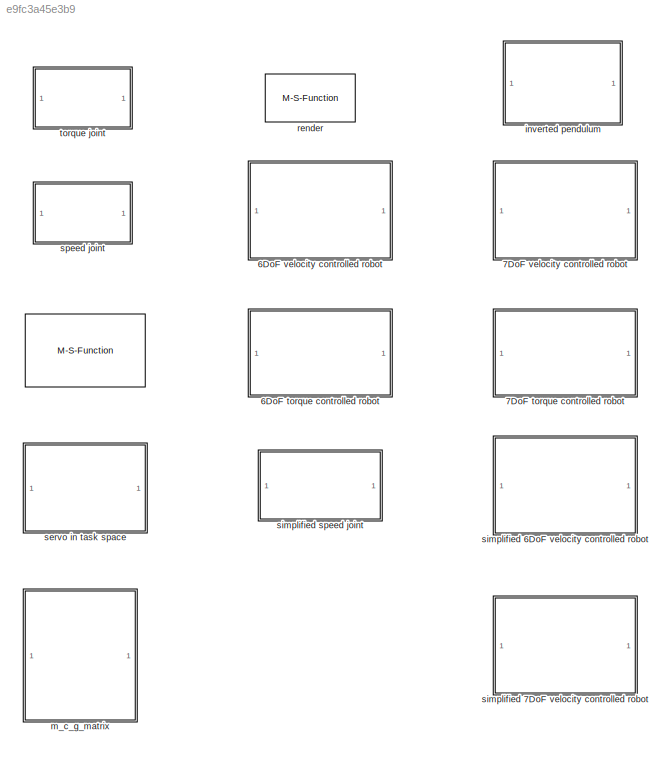
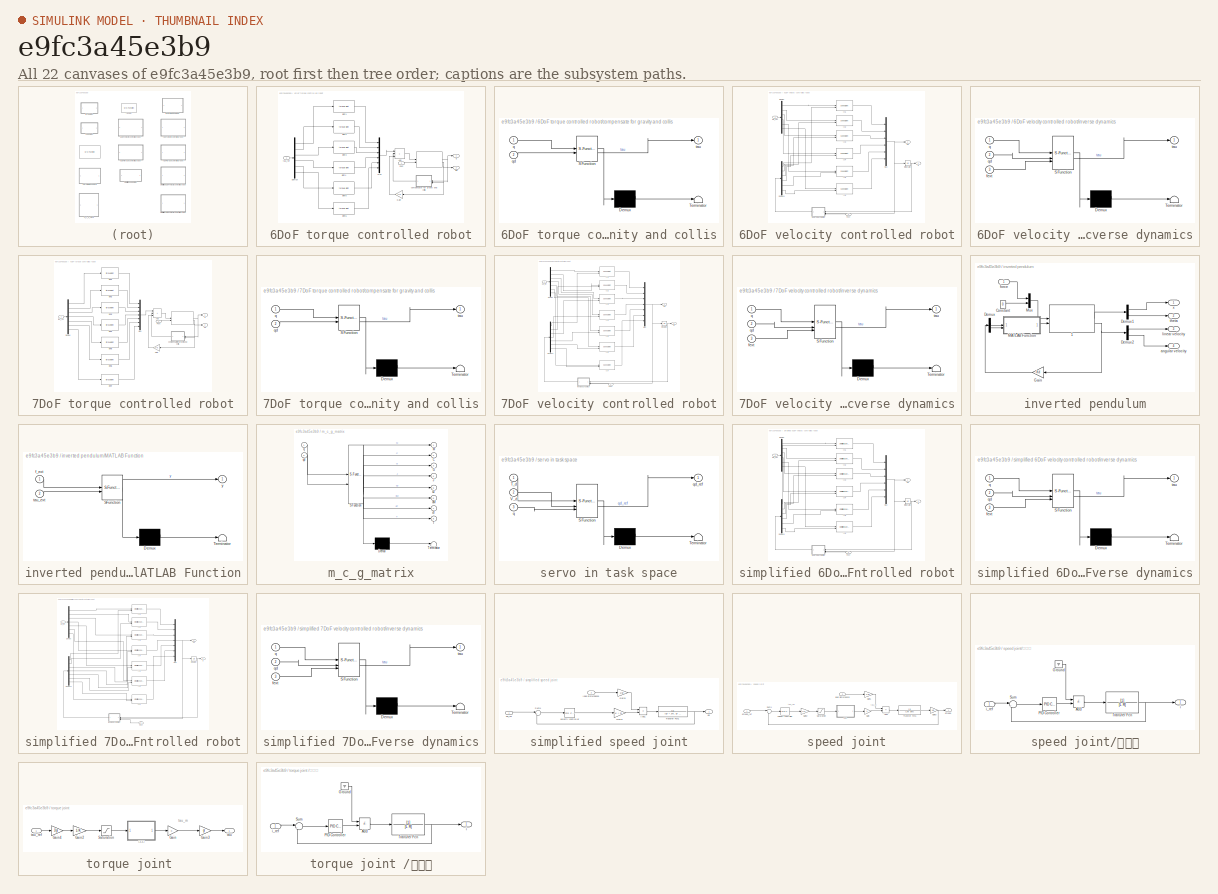
[diagram: thumbnail index - all 22 canvases of the model, root first then tree order]
MODEL slx_e9fc3a45e3b9
KIND library
CONFIG AbsTol = auto
CONFIG EnableMultiTasking = off
CONFIG FixedStep = auto
CONFIG MaxStep = auto
CONFIG MinStep = auto
CONFIG RelTol = 1e-3
CONFIG SampleTimeConstraint = Unconstrained
CONFIG SolverName = VariableStepAuto
CONFIG StartTime = 0.0
CONFIG StopTime = 10.0
BLOCK [M-S-Function]  
  FunctionName = robot_dynamics
  Parameters = robot, init_pos, init_vel
BLOCK [SubSystem] 6DoF torque controlled robot
BLOCK [Reference] 6DoF torque controlled robot/   REF=$bdroot/ 
  SourceBlock = $bdroot/
BLOCK [Sum] 6DoF torque controlled robot/Add
  IconShape = rectangular
  Inputs = +++
BLOCK [Demux] 6DoF torque controlled robot/Demux
  Outputs = 6
BLOCK [Inport] 6DoF torque controlled robot/Fext
  Port = 2
  PortDimensions = [6, robot.dof]
BLOCK [Gain] 6DoF torque controlled robot/Gain
  Gain = -1 * b
BLOCK [Mux] 6DoF torque controlled robot/Mux
  DisplayOption = bar
  Inputs = 6
BLOCK [SubSystem] 6DoF torque controlled robot/compensate for gravity and collis
  ErrorFcn = Stateflow.Translate.translate
  PermitHierarchicalResolution = ExplicitOnly
  SFBlockType = MATLAB Function
  TreatAsAtomicUnit = on
BLOCK [Demux] 6DoF torque controlled robot/compensate for gravity and collis/ Demux 
  Outputs = 1
BLOCK [S-Function] 6DoF torque controlled robot/compensate for gravity and collis/ SFunction 
  EnableBusSupport = off
  FunctionName = sf_sfun
  Parameters = robot
  PortCounts = [2 2]
  SFcnIsStateOwnerBlock = off
  SFunctionDeploymentMode = off
  Tag = Stateflow S-Function 1
BLOCK [Terminator] 6DoF torque controlled robot/compensate for gravity and collis/ Terminator 
BLOCK [Inport] 6DoF torque controlled robot/compensate for gravity and collis/q
BLOCK [Inport] 6DoF torque controlled robot/compensate for gravity and collis/qd
  Port = 2
BLOCK [Outport] 6DoF torque controlled robot/compensate for gravity and collis/tau
BLOCK [Reference] 6DoF torque controlled robot/joint1  REF=$bdroot/torque joint 
  SourceBlock = $bdroot/torque joint
BLOCK [Reference] 6DoF torque controlled robot/joint2  REF=$bdroot/torque joint 
  SourceBlock = $bdroot/torque joint
BLOCK [Reference] 6DoF torque controlled robot/joint3  REF=$bdroot/torque joint 
  SourceBlock = $bdroot/torque joint
BLOCK [Reference] 6DoF torque controlled robot/joint4  REF=$bdroot/torque joint 
  SourceBlock = $bdroot/torque joint
BLOCK [Reference] 6DoF torque controlled robot/joint5  REF=$bdroot/torque joint 
  SourceBlock = $bdroot/torque joint
BLOCK [Reference] 6DoF torque controlled robot/joint6  REF=$bdroot/torque joint 
  SourceBlock = $bdroot/torque joint
BLOCK [Outport] 6DoF torque controlled robot/q
BLOCK [Outport] 6DoF torque controlled robot/qd
  Port = 2
BLOCK [Inport] 6DoF torque controlled robot/tau_ref
BLOCK [SubSystem] 6DoF velocity controlled robot
BLOCK [Demux] 6DoF velocity controlled robot/Demux
  Outputs = 6
BLOCK [Demux] 6DoF velocity controlled robot/Demux1
  Outputs = 6
BLOCK [Inport] 6DoF velocity controlled robot/Fext
  Port = 2
BLOCK [Integrator] 6DoF velocity controlled robot/Integrator
  InitialCondition = q0
BLOCK [Mux] 6DoF velocity controlled robot/Mux
  DisplayOption = bar
  Inputs = 6
BLOCK [SubSystem] 6DoF velocity controlled robot/inverse dynamics
  ErrorFcn = Stateflow.Translate.translate
  PermitHierarchicalResolution = ExplicitOnly
  SFBlockType = MATLAB Function
  TreatAsAtomicUnit = on
BLOCK [Demux] 6DoF velocity controlled robot/inverse dynamics/ Demux 
  Outputs = 1
BLOCK [S-Function] 6DoF velocity controlled robot/inverse dynamics/ SFunction 
  EnableBusSupport = off
  FunctionName = sf_sfun
  Parameters = robot
  PortCounts = [3 2]
  SFcnIsStateOwnerBlock = off
  SFunctionDeploymentMode = off
  Tag = Stateflow S-Function 2
BLOCK [Terminator] 6DoF velocity controlled robot/inverse dynamics/ Terminator 
BLOCK [Inport] 6DoF velocity controlled robot/inverse dynamics/fext
  Port = 3
BLOCK [Inport] 6DoF velocity controlled robot/inverse dynamics/q
BLOCK [Inport] 6DoF velocity controlled robot/inverse dynamics/qd
  Port = 2
BLOCK [Outport] 6DoF velocity controlled robot/inverse dynamics/tau
BLOCK [Outport] 6DoF velocity controlled robot/q
BLOCK [Outport] 6DoF velocity controlled robot/qd
  Port = 2
BLOCK [Inport] 6DoF velocity controlled robot/qd_ref
BLOCK [Reference] 6DoF velocity controlled robot/关节1  REF=$bdroot/speed joint
  SourceBlock = $bdroot/speed joint
BLOCK [Reference] 6DoF velocity controlled robot/关节2  REF=$bdroot/speed joint
  SourceBlock = $bdroot/speed joint
BLOCK [Reference] 6DoF velocity controlled robot/关节3  REF=$bdroot/speed joint
  SourceBlock = $bdroot/speed joint
BLOCK [Reference] 6DoF velocity controlled robot/关节4  REF=$bdroot/speed joint
  SourceBlock = $bdroot/speed joint
BLOCK [Reference] 6DoF velocity controlled robot/关节5  REF=$bdroot/speed joint
  SourceBlock = $bdroot/speed joint
BLOCK [Reference] 6DoF velocity controlled robot/关节6  REF=$bdroot/speed joint
  SourceBlock = $bdroot/speed joint
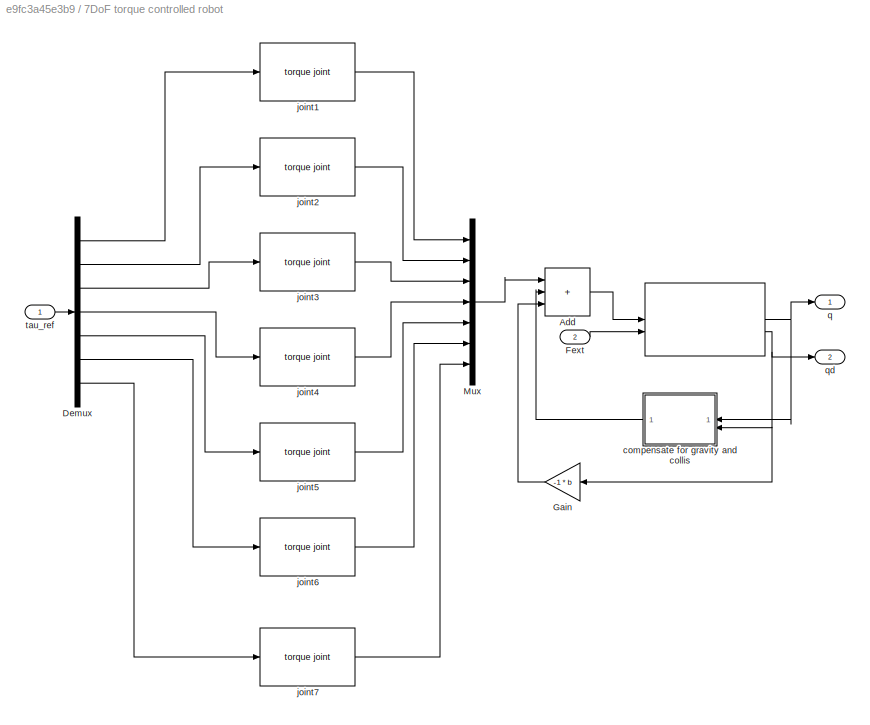
BLOCK [SubSystem] 7DoF torque controlled robot
BLOCK [Reference] 7DoF torque controlled robot/   REF=$bdroot/ 
  SourceBlock = $bdroot/
BLOCK [Sum] 7DoF torque controlled robot/Add
  IconShape = rectangular
  Inputs = +++
BLOCK [Demux] 7DoF torque controlled robot/Demux
  Outputs = 7
BLOCK [Inport] 7DoF torque controlled robot/Fext
  Port = 2
  PortDimensions = [6, robot.dof]
BLOCK [Gain] 7DoF torque controlled robot/Gain
  Gain = -1 * b
BLOCK [Mux] 7DoF torque controlled robot/Mux
  DisplayOption = bar
  Inputs = 7
BLOCK [SubSystem] 7DoF torque controlled robot/compensate for gravity and collis
  ErrorFcn = Stateflow.Translate.translate
  PermitHierarchicalResolution = ExplicitOnly
  SFBlockType = MATLAB Function
  TreatAsAtomicUnit = on
BLOCK [Demux] 7DoF torque controlled robot/compensate for gravity and collis/ Demux 
  Outputs = 1
BLOCK [S-Function] 7DoF torque controlled robot/compensate for gravity and collis/ SFunction 
  EnableBusSupport = off
  FunctionName = sf_sfun
  Parameters = robot
  PortCounts = [2 2]
  SFcnIsStateOwnerBlock = off
  SFunctionDeploymentMode = off
  Tag = Stateflow S-Function 4
BLOCK [Terminator] 7DoF torque controlled robot/compensate for gravity and collis/ Terminator 
BLOCK [Inport] 7DoF torque controlled robot/compensate for gravity and collis/q
BLOCK [Inport] 7DoF torque controlled robot/compensate for gravity and collis/qd
  Port = 2
BLOCK [Outport] 7DoF torque controlled robot/compensate for gravity and collis/tau
BLOCK [Reference] 7DoF torque controlled robot/joint1  REF=$bdroot/torque joint 
  SourceBlock = $bdroot/torque joint
BLOCK [Reference] 7DoF torque controlled robot/joint2  REF=$bdroot/torque joint 
  SourceBlock = $bdroot/torque joint
BLOCK [Reference] 7DoF torque controlled robot/joint3  REF=$bdroot/torque joint 
  SourceBlock = $bdroot/torque joint
BLOCK [Reference] 7DoF torque controlled robot/joint4  REF=$bdroot/torque joint 
  SourceBlock = $bdroot/torque joint
BLOCK [Reference] 7DoF torque controlled robot/joint5  REF=$bdroot/torque joint 
  SourceBlock = $bdroot/torque joint
BLOCK [Reference] 7DoF torque controlled robot/joint6  REF=$bdroot/torque joint 
  SourceBlock = $bdroot/torque joint
BLOCK [Reference] 7DoF torque controlled robot/joint7  REF=$bdroot/torque joint 
  SourceBlock = $bdroot/torque joint
BLOCK [Outport] 7DoF torque controlled robot/q
BLOCK [Outport] 7DoF torque controlled robot/qd
  Port = 2
BLOCK [Inport] 7DoF torque controlled robot/tau_ref
BLOCK [SubSystem] 7DoF velocity controlled robot
BLOCK [Demux] 7DoF velocity controlled robot/Demux
  Outputs = 7
BLOCK [Demux] 7DoF velocity controlled robot/Demux1
  Outputs = 7
BLOCK [Inport] 7DoF velocity controlled robot/Fext
  Port = 2
BLOCK [Integrator] 7DoF velocity controlled robot/Integrator
  InitialCondition = q0
BLOCK [Mux] 7DoF velocity controlled robot/Mux
  DisplayOption = bar
  Inputs = 7
BLOCK [SubSystem] 7DoF velocity controlled robot/inverse dynamics
  ErrorFcn = Stateflow.Translate.translate
  PermitHierarchicalResolution = ExplicitOnly
  SFBlockType = MATLAB Function
  TreatAsAtomicUnit = on
BLOCK [Demux] 7DoF velocity controlled robot/inverse dynamics/ Demux 
  Outputs = 1
BLOCK [S-Function] 7DoF velocity controlled robot/inverse dynamics/ SFunction 
  EnableBusSupport = off
  FunctionName = sf_sfun
  Parameters = robot
  PortCounts = [3 2]
  SFcnIsStateOwnerBlock = off
  SFunctionDeploymentMode = off
  Tag = Stateflow S-Function 3
BLOCK [Terminator] 7DoF velocity controlled robot/inverse dynamics/ Terminator 
BLOCK [Inport] 7DoF velocity controlled robot/inverse dynamics/fext
  Port = 3
BLOCK [Inport] 7DoF velocity controlled robot/inverse dynamics/q
BLOCK [Inport] 7DoF velocity controlled robot/inverse dynamics/qd
  Port = 2
BLOCK [Outport] 7DoF velocity controlled robot/inverse dynamics/tau
BLOCK [Outport] 7DoF velocity controlled robot/q
BLOCK [Outport] 7DoF velocity controlled robot/qd
  Port = 2
BLOCK [Inport] 7DoF velocity controlled robot/qd_ref
BLOCK [Reference] 7DoF velocity controlled robot/关节1  REF=$bdroot/speed joint
  SourceBlock = $bdroot/speed joint
BLOCK [Reference] 7DoF velocity controlled robot/关节2  REF=$bdroot/speed joint
  SourceBlock = $bdroot/speed joint
BLOCK [Reference] 7DoF velocity controlled robot/关节3  REF=$bdroot/speed joint
  SourceBlock = $bdroot/speed joint
BLOCK [Reference] 7DoF velocity controlled robot/关节4  REF=$bdroot/speed joint
  SourceBlock = $bdroot/speed joint
BLOCK [Reference] 7DoF velocity controlled robot/关节5  REF=$bdroot/speed joint
  SourceBlock = $bdroot/speed joint
BLOCK [Reference] 7DoF velocity controlled robot/关节6  REF=$bdroot/speed joint
  SourceBlock = $bdroot/speed joint
BLOCK [Reference] 7DoF velocity controlled robot/关节7  REF=$bdroot/speed joint
  SourceBlock = $bdroot/speed joint
BLOCK [SubSystem] inverted pendulum
BLOCK [Reference] inverted pendulum/ 1  REF=$bdroot/ 
  SourceBlock = $bdroot/
BLOCK [Constant] inverted pendulum/Constant
  Value = 0
BLOCK [Demux] inverted pendulum/Demux
  Outputs = 2
BLOCK [Demux] inverted pendulum/Demux1
  Outputs = 2
BLOCK [Demux] inverted pendulum/Demux2
  Outputs = 2
BLOCK [Gain] inverted pendulum/Gain
  Gain = -Kd
BLOCK [SubSystem] inverted pendulum/MATLAB Function
  ErrorFcn = Stateflow.Translate.translate
  PermitHierarchicalResolution = ExplicitOnly
  SFBlockType = MATLAB Function
  TreatAsAtomicUnit = on
BLOCK [Demux] inverted pendulum/MATLAB Function/ Demux 
  Outputs = 1
BLOCK [S-Function] inverted pendulum/MATLAB Function/ SFunction 
  EnableBusSupport = off
  FunctionName = sf_sfun
  PortCounts = [2 2]
  SFcnIsStateOwnerBlock = off
  SFunctionDeploymentMode = off
  Tag = Stateflow S-Function 5
BLOCK [Terminator] inverted pendulum/MATLAB Function/ Terminator 
BLOCK [Inport] inverted pendulum/MATLAB Function/f_ext
BLOCK [Inport] inverted pendulum/MATLAB Function/tau_ext
  Port = 2
BLOCK [Outport] inverted pendulum/MATLAB Function/y
  VectorParamsAs1DForOutWhenUnconnected = off
BLOCK [Mux] inverted pendulum/Mux
  DisplayOption = bar
  Inputs = 2
BLOCK [Outport] inverted pendulum/angular velocity
  Port = 4
BLOCK [Inport] inverted pendulum/force
BLOCK [Outport] inverted pendulum/linear velocity
  Port = 3
BLOCK [Outport] inverted pendulum/theta
  Port = 2
BLOCK [Outport] inverted pendulum/x
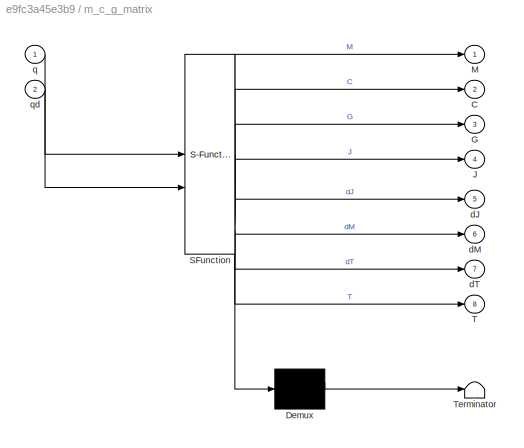
BLOCK [SubSystem] m_c_g_matrix
  ErrorFcn = Stateflow.Translate.translate
  PermitHierarchicalResolution = ExplicitOnly
  SFBlockType = MATLAB Function
  TreatAsAtomicUnit = on
BLOCK [Demux] m_c_g_matrix/ Demux 
  Outputs = 1
BLOCK [S-Function] m_c_g_matrix/ SFunction 
  EnableBusSupport = off
  FunctionName = sf_sfun
  Parameters = robot
  PortCounts = [2 9]
  SFcnIsStateOwnerBlock = off
  SFunctionDeploymentMode = off
  Tag = Stateflow S-Function 9
BLOCK [Terminator] m_c_g_matrix/ Terminator 
BLOCK [Outport] m_c_g_matrix/C
  Port = 2
BLOCK [Outport] m_c_g_matrix/G
  Port = 3
BLOCK [Outport] m_c_g_matrix/J
  Port = 4
BLOCK [Outport] m_c_g_matrix/M
BLOCK [Outport] m_c_g_matrix/T
  Port = 8
BLOCK [Outport] m_c_g_matrix/dJ
  Port = 5
BLOCK [Outport] m_c_g_matrix/dM
  Port = 6
BLOCK [Outport] m_c_g_matrix/dT
  Port = 7
BLOCK [Inport] m_c_g_matrix/q
BLOCK [Inport] m_c_g_matrix/qd
  Port = 2
BLOCK [M-S-Function] render
  FunctionName = render_to_MICSys
  Parameters = Ts
BLOCK [SubSystem] servo in task space
  ErrorFcn = Stateflow.Translate.translate
  PermitHierarchicalResolution = ExplicitOnly
  SFBlockType = MATLAB Function
  TreatAsAtomicUnit = on
BLOCK [Demux] servo in task space/ Demux 
  Outputs = 1
BLOCK [S-Function] servo in task space/ SFunction 
  EnableBusSupport = off
  FunctionName = sf_sfun
  Parameters = Kp,lambda,robot,threshold
  PortCounts = [3 2]
  SFcnIsStateOwnerBlock = off
  SFunctionDeploymentMode = off
  Tag = Stateflow S-Function 6
BLOCK [Terminator] servo in task space/ Terminator 
BLOCK [Inport] servo in task space/T_d
BLOCK [Inport] servo in task space/V_d
  Port = 2
BLOCK [Inport] servo in task space/q
  Port = 3
BLOCK [Outport] servo in task space/qd_ref
  VectorParamsAs1DForOutWhenUnconnected = off
BLOCK [SubSystem] simplified 6DoF velocity controlled robot
BLOCK [Demux] simplified 6DoF velocity controlled robot/Demux
  Outputs = 6
BLOCK [Demux] simplified 6DoF velocity controlled robot/Demux1
  Outputs = 6
BLOCK [Inport] simplified 6DoF velocity controlled robot/Fext
  Port = 2
BLOCK [Integrator] simplified 6DoF velocity controlled robot/Integrator
  InitialCondition = q0
BLOCK [Mux] simplified 6DoF velocity controlled robot/Mux
  DisplayOption = bar
  Inputs = 6
BLOCK [SubSystem] simplified 6DoF velocity controlled robot/inverse dynamics
  ErrorFcn = Stateflow.Translate.translate
  PermitHierarchicalResolution = ExplicitOnly
  SFBlockType = MATLAB Function
  TreatAsAtomicUnit = on
BLOCK [Demux] simplified 6DoF velocity controlled robot/inverse dynamics/ Demux 
  Outputs = 1
BLOCK [S-Function] simplified 6DoF velocity controlled robot/inverse dynamics/ SFunction 
  EnableBusSupport = off
  FunctionName = sf_sfun
  Parameters = robot
  PortCounts = [3 2]
  SFcnIsStateOwnerBlock = off
  SFunctionDeploymentMode = off
  Tag = Stateflow S-Function 7
BLOCK [Terminator] simplified 6DoF velocity controlled robot/inverse dynamics/ Terminator 
BLOCK [Inport] simplified 6DoF velocity controlled robot/inverse dynamics/fext
  Port = 3
BLOCK [Inport] simplified 6DoF velocity controlled robot/inverse dynamics/q
BLOCK [Inport] simplified 6DoF velocity controlled robot/inverse dynamics/qd
  Port = 2
BLOCK [Outport] simplified 6DoF velocity controlled robot/inverse dynamics/tau
BLOCK [Outport] simplified 6DoF velocity controlled robot/q
BLOCK [Outport] simplified 6DoF velocity controlled robot/qd
  Port = 2
BLOCK [Inport] simplified 6DoF velocity controlled robot/qd_ref
BLOCK [Reference] simplified 6DoF velocity controlled robot/关节1  REF=$bdroot/simplified speed joint
  SourceBlock = $bdroot/simplified speed joint
BLOCK [Reference] simplified 6DoF velocity controlled robot/关节2  REF=$bdroot/simplified speed joint
  SourceBlock = $bdroot/simplified speed joint
BLOCK [Reference] simplified 6DoF velocity controlled robot/关节3  REF=$bdroot/simplified speed joint
  SourceBlock = $bdroot/simplified speed joint
BLOCK [Reference] simplified 6DoF velocity controlled robot/关节4  REF=$bdroot/simplified speed joint
  SourceBlock = $bdroot/simplified speed joint
BLOCK [Reference] simplified 6DoF velocity controlled robot/关节5  REF=$bdroot/simplified speed joint
  SourceBlock = $bdroot/simplified speed joint
BLOCK [Reference] simplified 6DoF velocity controlled robot/关节6  REF=$bdroot/simplified speed joint
  SourceBlock = $bdroot/simplified speed joint
BLOCK [SubSystem] simplified 7DoF velocity controlled robot
BLOCK [Demux] simplified 7DoF velocity controlled robot/Demux
  Outputs = 7
BLOCK [Demux] simplified 7DoF velocity controlled robot/Demux1
  Outputs = 7
BLOCK [Inport] simplified 7DoF velocity controlled robot/Fext
  Port = 2
BLOCK [Integrator] simplified 7DoF velocity controlled robot/Integrator
  InitialCondition = q0
BLOCK [Mux] simplified 7DoF velocity controlled robot/Mux
  DisplayOption = bar
  Inputs = 7
BLOCK [SubSystem] simplified 7DoF velocity controlled robot/inverse dynamics
  ErrorFcn = Stateflow.Translate.translate
  PermitHierarchicalResolution = ExplicitOnly
  SFBlockType = MATLAB Function
  TreatAsAtomicUnit = on
BLOCK [Demux] simplified 7DoF velocity controlled robot/inverse dynamics/ Demux 
  Outputs = 1
BLOCK [S-Function] simplified 7DoF velocity controlled robot/inverse dynamics/ SFunction 
  EnableBusSupport = off
  FunctionName = sf_sfun
  Parameters = robot
  PortCounts = [3 2]
  SFcnIsStateOwnerBlock = off
  SFunctionDeploymentMode = off
  Tag = Stateflow S-Function 8
BLOCK [Terminator] simplified 7DoF velocity controlled robot/inverse dynamics/ Terminator 
BLOCK [Inport] simplified 7DoF velocity controlled robot/inverse dynamics/fext
  Port = 3
BLOCK [Inport] simplified 7DoF velocity controlled robot/inverse dynamics/q
BLOCK [Inport] simplified 7DoF velocity controlled robot/inverse dynamics/qd
  Port = 2
BLOCK [Outport] simplified 7DoF velocity controlled robot/inverse dynamics/tau
BLOCK [Outport] simplified 7DoF velocity controlled robot/q
BLOCK [Outport] simplified 7DoF velocity controlled robot/qd
  Port = 2
BLOCK [Inport] simplified 7DoF velocity controlled robot/qd_ref
BLOCK [Reference] simplified 7DoF velocity controlled robot/关节1  REF=$bdroot/simplified speed joint
  SourceBlock = $bdroot/simplified speed joint
BLOCK [Reference] simplified 7DoF velocity controlled robot/关节2  REF=$bdroot/simplified speed joint
  SourceBlock = $bdroot/simplified speed joint
BLOCK [Reference] simplified 7DoF velocity controlled robot/关节3  REF=$bdroot/simplified speed joint
  SourceBlock = $bdroot/simplified speed joint
BLOCK [Reference] simplified 7DoF velocity controlled robot/关节4  REF=$bdroot/simplified speed joint
  SourceBlock = $bdroot/simplified speed joint
BLOCK [Reference] simplified 7DoF velocity controlled robot/关节5  REF=$bdroot/simplified speed joint
  SourceBlock = $bdroot/simplified speed joint
BLOCK [Reference] simplified 7DoF velocity controlled robot/关节6  REF=$bdroot/simplified speed joint
  SourceBlock = $bdroot/simplified speed joint
BLOCK [Reference] simplified 7DoF velocity controlled robot/关节7  REF=$bdroot/simplified speed joint
  SourceBlock = $bdroot/simplified speed joint
BLOCK [SubSystem] simplified speed joint
BLOCK [Sum] simplified speed joint/Add1
  IconShape = rectangular
  Inputs = -+
BLOCK [Gain] simplified speed joint/Gain1
  Gain = 1/gr
BLOCK [Gain] simplified speed joint/Gain4
  Gain = K / R
BLOCK [Sum] simplified speed joint/Sum1
  Inputs = |+-
BLOCK [TransferFcn] simplified speed joint/Transfer Fcn1
  Denominator = [gr * Jm, gr * K^2 / R + gr * bm]
BLOCK [Inport] simplified speed joint/load disturbance
  Port = 2
BLOCK [Outport] simplified speed joint/qd
BLOCK [Inport] simplified speed joint/qd_ref
BLOCK [Reference] simplified speed joint/velocity controller  REF=slpidlib/PID Controller
  LibrarySourceBlock = simulink/Continuous/PID Controller
  SourceBlock = slpidlib/PID Controller
  SourceType = PID 1dof
BLOCK [SubSystem] speed joint
BLOCK [Sum] speed joint/Add1
  IconShape = rectangular
  Inputs = -+
BLOCK [Gain] speed joint/Gain
  Gain = K
BLOCK [Gain] speed joint/Gain1
  Gain = 1/gr
BLOCK [Gain] speed joint/Gain2
  Gain = 1/K
BLOCK [Gain] speed joint/Gain3
  Gain = 1/gr
BLOCK [Saturate] speed joint/Saturation
  Commented = through
  LowerLimit = -100
  UpperLimit = 100
BLOCK [Sum] speed joint/Sum1
  Inputs = |+-
BLOCK [TransferFcn] speed joint/Transfer Fcn1
  Denominator = [Jm bm]
BLOCK [Inport] speed joint/load disturbance
  Port = 2
BLOCK [Outport] speed joint/omega
BLOCK [Inport] speed joint/omega_ref
BLOCK [Reference] speed joint/velocity controller  REF=slpidlib/PID Controller
  LibrarySourceBlock = simulink/Continuous/PID Controller
  SourceBlock = slpidlib/PID Controller
  SourceType = PID 1dof
BLOCK [SubSystem] speed joint/电流环
BLOCK [Sum] speed joint/电流环/Add
  IconShape = rectangular
  Inputs = -+
BLOCK [Ground] speed joint/电流环/Ground
BLOCK [Reference] speed joint/电流环/PID Controller  REF=slpidlib/PID Controller
  LibrarySourceBlock = simulink/Continuous/PID Controller
  SourceBlock = slpidlib/PID Controller
  SourceType = PID 1dof
BLOCK [Sum] speed joint/电流环/Sum
  Inputs = |+-
BLOCK [TransferFcn] speed joint/电流环/Transfer Fcn
  Denominator = [L R]
BLOCK [Outport] speed joint/电流环/i
BLOCK [Inport] speed joint/电流环/i_ref
BLOCK [SubSystem] torque joint 
BLOCK [Gain] torque joint /Gain
  Gain = K
BLOCK [Gain] torque joint /Gain2
  Gain = 1/K
BLOCK [Gain] torque joint /Gain3
  Gain = gr
BLOCK [Gain] torque joint /Gain4
  Gain = 1/gr
BLOCK [Saturate] torque joint /Saturation
  Commented = through
  LowerLimit = -100
  UpperLimit = 100
BLOCK [Outport] torque joint /tau
BLOCK [Inport] torque joint /tau_ref
BLOCK [SubSystem] torque joint /电流环
BLOCK [Sum] torque joint /电流环/Add
  IconShape = rectangular
  Inputs = -+
BLOCK [Ground] torque joint /电流环/Ground
BLOCK [Reference] torque joint /电流环/PID Controller  REF=slpidlib/PID Controller
  LibrarySourceBlock = simulink/Continuous/PID Controller
  SourceBlock = slpidlib/PID Controller
  SourceType = PID 1dof
BLOCK [Sum] torque joint /电流环/Sum
  Inputs = |+-
BLOCK [TransferFcn] torque joint /电流环/Transfer Fcn
  Denominator = [L R]
BLOCK [Outport] torque joint /电流环/i
BLOCK [Inport] torque joint /电流环/i_ref
ANNOTATION speed joint: tau_m
ANNOTATION speed joint: tau_ref
ANNOTATION torque joint : tau_m
NET 6DoF torque controlled robot/ :1 -> 6DoF torque controlled robot/compensate for gravity and collis:1, 6DoF torque controlled robot/q:1
NET 6DoF torque controlled robot/ :2 -> 6DoF torque controlled robot/Gain:1, 6DoF torque controlled robot/compensate for gravity and collis:2, 6DoF torque controlled robot/qd:1
LINE 6DoF torque controlled robot/Add:1 -> 6DoF torque controlled robot/ :1
LINE 6DoF torque controlled robot/Demux:1 -> 6DoF torque controlled robot/joint1:1
LINE 6DoF torque controlled robot/Demux:2 -> 6DoF torque controlled robot/joint2:1
LINE 6DoF torque controlled robot/Demux:3 -> 6DoF torque controlled robot/joint3:1
LINE 6DoF torque controlled robot/Demux:4 -> 6DoF torque controlled robot/joint4:1
LINE 6DoF torque controlled robot/Demux:5 -> 6DoF torque controlled robot/joint5:1
LINE 6DoF torque controlled robot/Demux:6 -> 6DoF torque controlled robot/joint6:1
LINE 6DoF torque controlled robot/Fext:1 -> 6DoF torque controlled robot/ :2
LINE 6DoF torque controlled robot/Gain:1 -> 6DoF torque controlled robot/Add:3
LINE 6DoF torque controlled robot/Mux:1 -> 6DoF torque controlled robot/Add:1
LINE 6DoF torque controlled robot/compensate for gravity and collis:1 -> 6DoF torque controlled robot/Add:2
LINE 6DoF torque controlled robot/joint1:1 -> 6DoF torque controlled robot/Mux:1
LINE 6DoF torque controlled robot/joint2:1 -> 6DoF torque controlled robot/Mux:2
LINE 6DoF torque controlled robot/joint3:1 -> 6DoF torque controlled robot/Mux:3
LINE 6DoF torque controlled robot/joint4:1 -> 6DoF torque controlled robot/Mux:4
LINE 6DoF torque controlled robot/joint5:1 -> 6DoF torque controlled robot/Mux:5
LINE 6DoF torque controlled robot/joint6:1 -> 6DoF torque controlled robot/Mux:6
LINE 6DoF torque controlled robot/tau_ref:1 -> 6DoF torque controlled robot/Demux:1
LINE 6DoF velocity controlled robot/Demux1:1 -> 6DoF velocity controlled robot/关节1:2
LINE 6DoF velocity controlled robot/Demux1:2 -> 6DoF velocity controlled robot/关节2:2
LINE 6DoF velocity controlled robot/Demux1:3 -> 6DoF velocity controlled robot/关节3:2
LINE 6DoF velocity controlled robot/Demux1:4 -> 6DoF velocity controlled robot/关节4:2
LINE 6DoF velocity controlled robot/Demux1:5 -> 6DoF velocity controlled robot/关节5:2
LINE 6DoF velocity controlled robot/Demux1:6 -> 6DoF velocity controlled robot/关节6:2
LINE 6DoF velocity controlled robot/Demux:1 -> 6DoF velocity controlled robot/关节1:1
LINE 6DoF velocity controlled robot/Demux:2 -> 6DoF velocity controlled robot/关节2:1
LINE 6DoF velocity controlled robot/Demux:3 -> 6DoF velocity controlled robot/关节3:1
LINE 6DoF velocity controlled robot/Demux:4 -> 6DoF velocity controlled robot/关节4:1
LINE 6DoF velocity controlled robot/Demux:5 -> 6DoF velocity controlled robot/关节5:1
LINE 6DoF velocity controlled robot/Demux:6 -> 6DoF velocity controlled robot/关节6:1
LINE 6DoF velocity controlled robot/Fext:1 -> 6DoF velocity controlled robot/inverse dynamics:3
NET 6DoF velocity controlled robot/Integrator:1 -> 6DoF velocity controlled robot/inverse dynamics:1, 6DoF velocity controlled robot/q:1
NET 6DoF velocity controlled robot/Mux:1 -> 6DoF velocity controlled robot/Integrator:1, 6DoF velocity controlled robot/inverse dynamics:2, 6DoF velocity controlled robot/qd:1
LINE 6DoF velocity controlled robot/inverse dynamics:1 -> 6DoF velocity controlled robot/Demux1:1
LINE 6DoF velocity controlled robot/qd_ref:1 -> 6DoF velocity controlled robot/Demux:1
LINE 6DoF velocity controlled robot/关节1:1 -> 6DoF velocity controlled robot/Mux:1
LINE 6DoF velocity controlled robot/关节2:1 -> 6DoF velocity controlled robot/Mux:2
LINE 6DoF velocity controlled robot/关节3:1 -> 6DoF velocity controlled robot/Mux:3
LINE 6DoF velocity controlled robot/关节4:1 -> 6DoF velocity controlled robot/Mux:4
LINE 6DoF velocity controlled robot/关节5:1 -> 6DoF velocity controlled robot/Mux:5
LINE 6DoF velocity controlled robot/关节6:1 -> 6DoF velocity controlled robot/Mux:6
NET 7DoF torque controlled robot/ :1 -> 7DoF torque controlled robot/compensate for gravity and collis:1, 7DoF torque controlled robot/q:1
NET 7DoF torque controlled robot/ :2 -> 7DoF torque controlled robot/Gain:1, 7DoF torque controlled robot/compensate for gravity and collis:2, 7DoF torque controlled robot/qd:1
LINE 7DoF torque controlled robot/Add:1 -> 7DoF torque controlled robot/ :1
LINE 7DoF torque controlled robot/Demux:1 -> 7DoF torque controlled robot/joint1:1
LINE 7DoF torque controlled robot/Demux:2 -> 7DoF torque controlled robot/joint2:1
LINE 7DoF torque controlled robot/Demux:3 -> 7DoF torque controlled robot/joint3:1
LINE 7DoF torque controlled robot/Demux:4 -> 7DoF torque controlled robot/joint4:1
LINE 7DoF torque controlled robot/Demux:5 -> 7DoF torque controlled robot/joint5:1
LINE 7DoF torque controlled robot/Demux:6 -> 7DoF torque controlled robot/joint6:1
LINE 7DoF torque controlled robot/Demux:7 -> 7DoF torque controlled robot/joint7:1
LINE 7DoF torque controlled robot/Fext:1 -> 7DoF torque controlled robot/ :2
LINE 7DoF torque controlled robot/Gain:1 -> 7DoF torque controlled robot/Add:3
LINE 7DoF torque controlled robot/Mux:1 -> 7DoF torque controlled robot/Add:1
LINE 7DoF torque controlled robot/compensate for gravity and collis:1 -> 7DoF torque controlled robot/Add:2
LINE 7DoF torque controlled robot/joint1:1 -> 7DoF torque controlled robot/Mux:1
LINE 7DoF torque controlled robot/joint2:1 -> 7DoF torque controlled robot/Mux:2
LINE 7DoF torque controlled robot/joint3:1 -> 7DoF torque controlled robot/Mux:3
LINE 7DoF torque controlled robot/joint4:1 -> 7DoF torque controlled robot/Mux:4
LINE 7DoF torque controlled robot/joint5:1 -> 7DoF torque controlled robot/Mux:5
LINE 7DoF torque controlled robot/joint6:1 -> 7DoF torque controlled robot/Mux:6
LINE 7DoF torque controlled robot/joint7:1 -> 7DoF torque controlled robot/Mux:7
LINE 7DoF torque controlled robot/tau_ref:1 -> 7DoF torque controlled robot/Demux:1
LINE 7DoF velocity controlled robot/Demux1:1 -> 7DoF velocity controlled robot/关节1:2
LINE 7DoF velocity controlled robot/Demux1:2 -> 7DoF velocity controlled robot/关节2:2
LINE 7DoF velocity controlled robot/Demux1:3 -> 7DoF velocity controlled robot/关节3:2
LINE 7DoF velocity controlled robot/Demux1:4 -> 7DoF velocity controlled robot/关节4:2
LINE 7DoF velocity controlled robot/Demux1:5 -> 7DoF velocity controlled robot/关节5:2
LINE 7DoF velocity controlled robot/Demux1:6 -> 7DoF velocity controlled robot/关节6:2
LINE 7DoF velocity controlled robot/Demux1:7 -> 7DoF velocity controlled robot/关节7:2
LINE 7DoF velocity controlled robot/Demux:1 -> 7DoF velocity controlled robot/关节1:1
LINE 7DoF velocity controlled robot/Demux:2 -> 7DoF velocity controlled robot/关节2:1
LINE 7DoF velocity controlled robot/Demux:3 -> 7DoF velocity controlled robot/关节3:1
LINE 7DoF velocity controlled robot/Demux:4 -> 7DoF velocity controlled robot/关节4:1
LINE 7DoF velocity controlled robot/Demux:5 -> 7DoF velocity controlled robot/关节5:1
LINE 7DoF velocity controlled robot/Demux:6 -> 7DoF velocity controlled robot/关节6:1
LINE 7DoF velocity controlled robot/Demux:7 -> 7DoF velocity controlled robot/关节7:1
LINE 7DoF velocity controlled robot/Fext:1 -> 7DoF velocity controlled robot/inverse dynamics:3
NET 7DoF velocity controlled robot/Integrator:1 -> 7DoF velocity controlled robot/inverse dynamics:1, 7DoF velocity controlled robot/q:1
NET 7DoF velocity controlled robot/Mux:1 -> 7DoF velocity controlled robot/Integrator:1, 7DoF velocity controlled robot/inverse dynamics:2, 7DoF velocity controlled robot/qd:1
LINE 7DoF velocity controlled robot/inverse dynamics:1 -> 7DoF velocity controlled robot/Demux1:1
LINE 7DoF velocity controlled robot/qd_ref:1 -> 7DoF velocity controlled robot/Demux:1
LINE 7DoF velocity controlled robot/关节1:1 -> 7DoF velocity controlled robot/Mux:1
LINE 7DoF velocity controlled robot/关节2:1 -> 7DoF velocity controlled robot/Mux:2
LINE 7DoF velocity controlled robot/关节3:1 -> 7DoF velocity controlled robot/Mux:3
LINE 7DoF velocity controlled robot/关节4:1 -> 7DoF velocity controlled robot/Mux:4
LINE 7DoF velocity controlled robot/关节5:1 -> 7DoF velocity controlled robot/Mux:5
LINE 7DoF velocity controlled robot/关节6:1 -> 7DoF velocity controlled robot/Mux:6
LINE 7DoF velocity controlled robot/关节7:1 -> 7DoF velocity controlled robot/Mux:7
LINE inverted pendulum/ 1:1 -> inverted pendulum/Demux1:1
NET inverted pendulum/ 1:2 -> inverted pendulum/Demux2:1, inverted pendulum/Gain:1
LINE inverted pendulum/Constant:1 -> inverted pendulum/Mux:2
LINE inverted pendulum/Demux1:1 -> inverted pendulum/x:1
LINE inverted pendulum/Demux1:2 -> inverted pendulum/theta:1
LINE inverted pendulum/Demux2:1 -> inverted pendulum/linear velocity:1
LINE inverted pendulum/Demux2:2 -> inverted pendulum/angular velocity:1
LINE inverted pendulum/Demux:1 -> inverted pendulum/MATLAB Function:1
LINE inverted pendulum/Demux:2 -> inverted pendulum/MATLAB Function:2
LINE inverted pendulum/Gain:1 -> inverted pendulum/Demux:1
LINE inverted pendulum/MATLAB Function:1 -> inverted pendulum/ 1:2
LINE inverted pendulum/Mux:1 -> inverted pendulum/ 1:1
LINE inverted pendulum/force:1 -> inverted pendulum/Mux:1
LINE simplified 6DoF velocity controlled robot/Demux1:1 -> simplified 6DoF velocity controlled robot/关节1:2
LINE simplified 6DoF velocity controlled robot/Demux1:2 -> simplified 6DoF velocity controlled robot/关节2:2
LINE simplified 6DoF velocity controlled robot/Demux1:3 -> simplified 6DoF velocity controlled robot/关节3:2
LINE simplified 6DoF velocity controlled robot/Demux1:4 -> simplified 6DoF velocity controlled robot/关节4:2
LINE simplified 6DoF velocity controlled robot/Demux1:5 -> simplified 6DoF velocity controlled robot/关节5:2
LINE simplified 6DoF velocity controlled robot/Demux1:6 -> simplified 6DoF velocity controlled robot/关节6:2
LINE simplified 6DoF velocity controlled robot/Demux:1 -> simplified 6DoF velocity controlled robot/关节1:1
LINE simplified 6DoF velocity controlled robot/Demux:2 -> simplified 6DoF velocity controlled robot/关节2:1
LINE simplified 6DoF velocity controlled robot/Demux:3 -> simplified 6DoF velocity controlled robot/关节3:1
LINE simplified 6DoF velocity controlled robot/Demux:4 -> simplified 6DoF velocity controlled robot/关节4:1
LINE simplified 6DoF velocity controlled robot/Demux:5 -> simplified 6DoF velocity controlled robot/关节5:1
LINE simplified 6DoF velocity controlled robot/Demux:6 -> simplified 6DoF velocity controlled robot/关节6:1
LINE simplified 6DoF velocity controlled robot/Fext:1 -> simplified 6DoF velocity controlled robot/inverse dynamics:3
NET simplified 6DoF velocity controlled robot/Integrator:1 -> simplified 6DoF velocity controlled robot/inverse dynamics:1, simplified 6DoF velocity controlled robot/q:1
NET simplified 6DoF velocity controlled robot/Mux:1 -> simplified 6DoF velocity controlled robot/Integrator:1, simplified 6DoF velocity controlled robot/inverse dynamics:2, simplified 6DoF velocity controlled robot/qd:1
LINE simplified 6DoF velocity controlled robot/inverse dynamics:1 -> simplified 6DoF velocity controlled robot/Demux1:1
LINE simplified 6DoF velocity controlled robot/qd_ref:1 -> simplified 6DoF velocity controlled robot/Demux:1
LINE simplified 6DoF velocity controlled robot/关节1:1 -> simplified 6DoF velocity controlled robot/Mux:1
LINE simplified 6DoF velocity controlled robot/关节2:1 -> simplified 6DoF velocity controlled robot/Mux:2
LINE simplified 6DoF velocity controlled robot/关节3:1 -> simplified 6DoF velocity controlled robot/Mux:3
LINE simplified 6DoF velocity controlled robot/关节4:1 -> simplified 6DoF velocity controlled robot/Mux:4
LINE simplified 6DoF velocity controlled robot/关节5:1 -> simplified 6DoF velocity controlled robot/Mux:5
LINE simplified 6DoF velocity controlled robot/关节6:1 -> simplified 6DoF velocity controlled robot/Mux:6
LINE simplified 7DoF velocity controlled robot/Demux1:1 -> simplified 7DoF velocity controlled robot/关节1:2
LINE simplified 7DoF velocity controlled robot/Demux1:2 -> simplified 7DoF velocity controlled robot/关节2:2
LINE simplified 7DoF velocity controlled robot/Demux1:3 -> simplified 7DoF velocity controlled robot/关节3:2
LINE simplified 7DoF velocity controlled robot/Demux1:4 -> simplified 7DoF velocity controlled robot/关节4:2
LINE simplified 7DoF velocity controlled robot/Demux1:5 -> simplified 7DoF velocity controlled robot/关节5:2
LINE simplified 7DoF velocity controlled robot/Demux1:6 -> simplified 7DoF velocity controlled robot/关节6:2
LINE simplified 7DoF velocity controlled robot/Demux1:7 -> simplified 7DoF velocity controlled robot/关节7:2
LINE simplified 7DoF velocity controlled robot/Demux:1 -> simplified 7DoF velocity controlled robot/关节1:1
LINE simplified 7DoF velocity controlled robot/Demux:2 -> simplified 7DoF velocity controlled robot/关节2:1
LINE simplified 7DoF velocity controlled robot/Demux:3 -> simplified 7DoF velocity controlled robot/关节3:1
LINE simplified 7DoF velocity controlled robot/Demux:4 -> simplified 7DoF velocity controlled robot/关节4:1
LINE simplified 7DoF velocity controlled robot/Demux:5 -> simplified 7DoF velocity controlled robot/关节5:1
LINE simplified 7DoF velocity controlled robot/Demux:6 -> simplified 7DoF velocity controlled robot/关节6:1
LINE simplified 7DoF velocity controlled robot/Demux:7 -> simplified 7DoF velocity controlled robot/关节7:1
LINE simplified 7DoF velocity controlled robot/Fext:1 -> simplified 7DoF velocity controlled robot/inverse dynamics:3
NET simplified 7DoF velocity controlled robot/Integrator:1 -> simplified 7DoF velocity controlled robot/inverse dynamics:1, simplified 7DoF velocity controlled robot/q:1
NET simplified 7DoF velocity controlled robot/Mux:1 -> simplified 7DoF velocity controlled robot/Integrator:1, simplified 7DoF velocity controlled robot/inverse dynamics:2, simplified 7DoF velocity controlled robot/qd:1
LINE simplified 7DoF velocity controlled robot/inverse dynamics:1 -> simplified 7DoF velocity controlled robot/Demux1:1
LINE simplified 7DoF velocity controlled robot/qd_ref:1 -> simplified 7DoF velocity controlled robot/Demux:1
LINE simplified 7DoF velocity controlled robot/关节1:1 -> simplified 7DoF velocity controlled robot/Mux:1
LINE simplified 7DoF velocity controlled robot/关节2:1 -> simplified 7DoF velocity controlled robot/Mux:2
LINE simplified 7DoF velocity controlled robot/关节3:1 -> simplified 7DoF velocity controlled robot/Mux:3
LINE simplified 7DoF velocity controlled robot/关节4:1 -> simplified 7DoF velocity controlled robot/Mux:4
LINE simplified 7DoF velocity controlled robot/关节5:1 -> simplified 7DoF velocity controlled robot/Mux:5
LINE simplified 7DoF velocity controlled robot/关节6:1 -> simplified 7DoF velocity controlled robot/Mux:6
LINE simplified 7DoF velocity controlled robot/关节7:1 -> simplified 7DoF velocity controlled robot/Mux:7
LINE simplified speed joint/Add1:1 -> simplified speed joint/Transfer Fcn1:1
LINE simplified speed joint/Gain1:1 -> simplified speed joint/Add1:1
LINE simplified speed joint/Gain4:1 -> simplified speed joint/Add1:2
LINE simplified speed joint/Sum1:1 -> simplified speed joint/velocity controller:1
NET simplified speed joint/Transfer Fcn1:1 -> simplified speed joint/Sum1:2, simplified speed joint/qd:1
LINE simplified speed joint/load disturbance:1 -> simplified speed joint/Gain1:1
LINE simplified speed joint/qd_ref:1 -> simplified speed joint/Sum1:1
LINE simplified speed joint/velocity controller:1 -> simplified speed joint/Gain4:1
LINE speed joint/Add1:1 -> speed joint/Transfer Fcn1:1
LINE speed joint/Gain1:1 -> speed joint/Add1:1
LINE speed joint/Gain2:1 -> speed joint/Saturation:1
NET speed joint/Gain3:1 -> speed joint/Sum1:2, speed joint/omega:1
LINE speed joint/Gain:1 -> speed joint/Add1:2
LINE speed joint/Saturation:1 -> speed joint/电流环:1
LINE speed joint/Sum1:1 -> speed joint/velocity controller:1
LINE speed joint/Transfer Fcn1:1 -> speed joint/Gain3:1
LINE speed joint/load disturbance:1 -> speed joint/Gain1:1
LINE speed joint/omega_ref:1 -> speed joint/Sum1:1
LINE speed joint/velocity controller:1 -> speed joint/Gain2:1
LINE speed joint/电流环/Add:1 -> speed joint/电流环/Transfer Fcn:1
LINE speed joint/电流环/Ground:1 -> speed joint/电流环/Add:1
LINE speed joint/电流环/PID Controller:1 -> speed joint/电流环/Add:2
LINE speed joint/电流环/Sum:1 -> speed joint/电流环/PID Controller:1
NET speed joint/电流环/Transfer Fcn:1 -> speed joint/电流环/Sum:2, speed joint/电流环/i:1
LINE speed joint/电流环/i_ref:1 -> speed joint/电流环/Sum:1
LINE speed joint/电流环:1 -> speed joint/Gain:1
LINE torque joint /Gain2:1 -> torque joint /Saturation:1
LINE torque joint /Gain3:1 -> torque joint /tau:1
LINE torque joint /Gain4:1 -> torque joint /Gain2:1
LINE torque joint /Gain:1 -> torque joint /Gain3:1
LINE torque joint /Saturation:1 -> torque joint /电流环:1
LINE torque joint /tau_ref:1 -> torque joint /Gain4:1
LINE torque joint /电流环/Add:1 -> torque joint /电流环/Transfer Fcn:1
LINE torque joint /电流环/Ground:1 -> torque joint /电流环/Add:1
LINE torque joint /电流环/PID Controller:1 -> torque joint /电流环/Add:2
LINE torque joint /电流环/Sum:1 -> torque joint /电流环/PID Controller:1
NET torque joint /电流环/Transfer Fcn:1 -> torque joint /电流环/Sum:2, torque joint /电流环/i:1
LINE torque joint /电流环/i_ref:1 -> torque joint /电流环/Sum:1
LINE torque joint /电流环:1 -> torque joint /Gain:1
note: NET lines group one-source signal fan-out (src -> all destinations, sorted); 1:1 wires keep LINE
CHART 6DoF torque controlled robot/compensate for gravity and collis states=1 transitions=1
  STATE_LABEL 'eML_blk_kernel()'
  STATE_LABEL 'SCRIPT:\nfunction tau = fcn(q, qd, robot)\ntau = gravity_velocity_torque(robot, q, qd);\n'
CHART 6DoF velocity controlled robot/inverse dynamics states=1 transitions=1
  STATE_LABEL 'eML_blk_kernel()'
  STATE_LABEL 'SCRIPT:\nfunction tau = fcn(q, qd, fext, robot)\ntau = inverse_dynamics_fext(robot, q, qd, zeros(robot.dof, 1), fext);\n'
CHART 7DoF velocity controlled robot/inverse dynamics states=1 transitions=1
  STATE_LABEL 'eML_blk_kernel()'
  STATE_LABEL 'SCRIPT:\nfunction tau = fcn(q, qd, fext, robot)\ntau = inverse_dynamics_fext(robot, q, qd, zeros(robot.dof, 1), fext);\n'
CHART 7DoF torque controlled robot/compensate for gravity and collis states=1 transitions=1
  STATE_LABEL 'eML_blk_kernel()'
  STATE_LABEL 'SCRIPT:\nfunction tau = fcn(q, qd, robot)\ntau = gravity_velocity_torque(robot, q, qd);\n'
CHART inverted pendulum/MATLAB Function states=1 transitions=1
  STATE_LABEL 'eML_blk_kernel()'
  STATE_LABEL "SCRIPT:\nfunction y = fcn(f_ext, tau_ext)\n%#codegen\ny1 = [0, 0, 0, f_ext, 0, 0]';\ny2 = [0, 0, tau_ext, 0, 0, 0]';\ny = [y1, y2];"
CHART servo in task space states=1 transitions=1
  STATE_LABEL 'eML_blk_kernel()'
  STATE_LABEL "SCRIPT:\nfunction qd_ref = fcn(T_d, V_d, q, robot, Kp, lambda, threshold)\n%#codegen\nT = forward_kin_general(robot, q);\nJb = jacobian_matrix(robot, q);\nR = T(1:3, 1:3);\np = T(1:3, 4);\nRd = T_d(1:3, 1:3);\npd = T_d(1:3, 4);\nxe = [logR(R'*Rd)'; R' * (pd - p)];\nV_d(1:3) = R' * V_d(1:3);\nV_d(4:6) = R' * V_d(4:6);\nV_cmd = V_d + Kp(:) .* xe;\nqd_ref = damping_least_square(Jb, V_cmd, lambda, threshold);"
CHART simplified 6DoF velocity controlled robot/inverse dynamics states=1 transitions=1
  STATE_LABEL 'eML_blk_kernel()'
  STATE_LABEL 'SCRIPT:\nfunction tau = fcn(q, qd, fext, robot)\ntau = inverse_dynamics_fext(robot, q, qd, zeros(robot.dof, 1), fext);\n'
CHART simplified 7DoF velocity controlled robot/inverse dynamics states=1 transitions=1
  STATE_LABEL 'eML_blk_kernel()'
  STATE_LABEL 'SCRIPT:\nfunction tau = fcn(q, qd, fext, robot)\ntau = inverse_dynamics_fext(robot, q, qd, zeros(robot.dof, 1), fext);\n'
CHART m_c_g_matrix states=1 transitions=1
  STATE_LABEL 'eML_blk_kernel()'
  STATE_LABEL 'SCRIPT:\nfunction [M, C, G, J, dJ, dM, dT, T] = fcn(q, qd, robot)\n[M, C, G, J, dJ, dM, dT, T] = m_c_g_matrix(robot, q, qd);\n'
CHART  states=0 transitions=0
CHART  states=0 transitions=0
CHART  states=0 transitions=0
CHART  states=0 transitions=0
CHART  states=0 transitions=0
CHART  states=0 transitions=0
CHART  states=0 transitions=0
CHART  states=0 transitions=0
CHART  states=0 transitions=0
